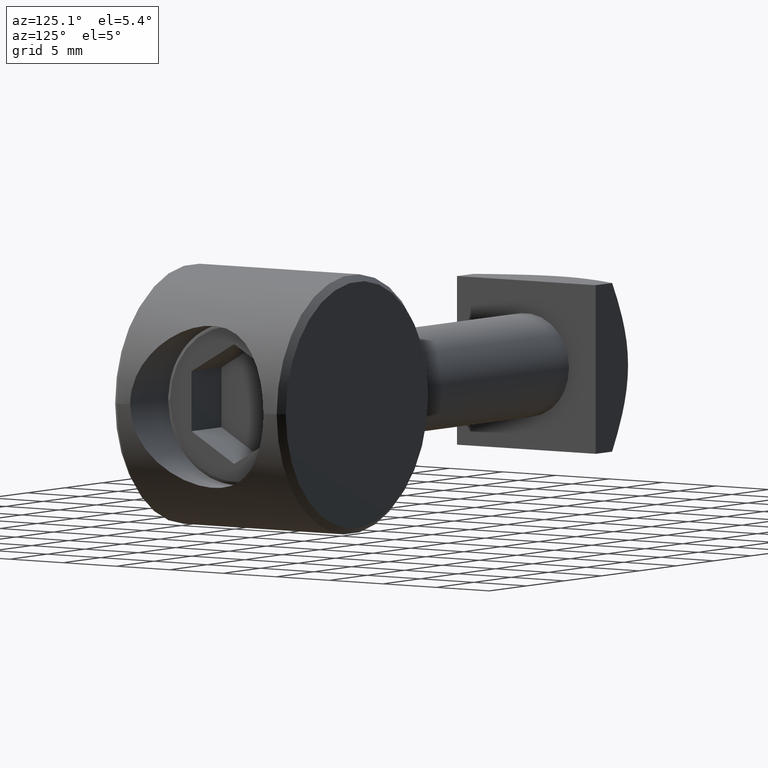
[diagram: clean part render]
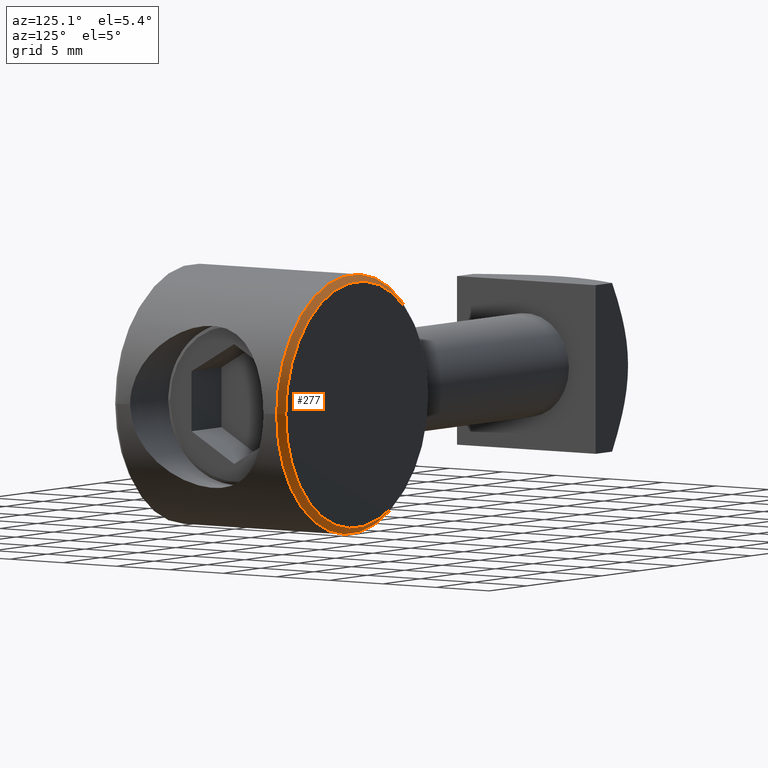
[diagram: same view with one face highlighted and labeled with its STEP entity id]
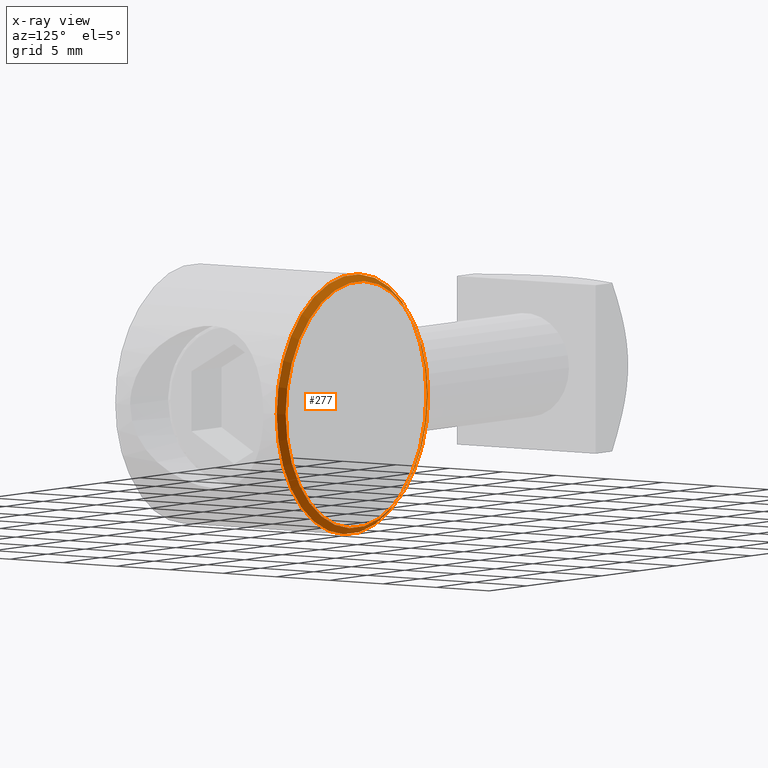
[diagram: x-ray of the same camera — body ghosted, the highlighted face saturated]
A machine part, auxiliary view. The second image highlights one B-rep face of the part: STEP entity #277.
The next image is the same camera in x-ray: the body ghosted, the highlighted face saturated — about 0% of this face is hidden behind the body in this view.
In plain terms, the highlighted face is a freeform B-spline surface patch.
Its self-contained STEP definition (entity closure, byte-faithful):
#121=CARTESIAN_POINT('',(9.999999999959528,-0.499999999998181,0.0));
#122=VERTEX_POINT('',#121);
#129=CARTESIAN_POINT('',(-9.999999999959528,-0.499999999998181,0.0));
#130=VERTEX_POINT('',#129);
#131=CARTESIAN_POINT('',(0.0,-0.499999999998181,0.0));
#132=DIRECTION('',(0.0,-1.0,0.0));
#133=DIRECTION('',(1.0,0.0,0.0));
#134=AXIS2_PLACEMENT_3D('',#131,#132,#133);
#135=CIRCLE('',#134,9.999999999959528);
#136=EDGE_CURVE('',#122,#130,#135,.T.);
#138=CARTESIAN_POINT('',(0.0,-0.499999999998181,0.0));
#139=DIRECTION('',(0.0,-1.0,0.0));
#140=DIRECTION('',(1.0,0.0,0.0));
#141=AXIS2_PLACEMENT_3D('',#138,#139,#140);
#142=CIRCLE('',#141,9.999999999959528);
#143=EDGE_CURVE('',#130,#122,#142,.T.);
#222=CARTESIAN_POINT('',(9.999999999959528,-0.499999999998181,0.0));
#223=CARTESIAN_POINT('',(9.999999999959528,-0.499999999998181,9.999999999959528));
#224=CARTESIAN_POINT('',(0.0,-0.499999999998181,9.999999999959528));
#225=CARTESIAN_POINT('',(-9.999999999959528,-0.499999999998181,9.999999999959528));
#226=CARTESIAN_POINT('',(-9.999999999959528,-0.499999999998181,0.0));
#227=CARTESIAN_POINT('',(-9.999999999959528,-0.499999999998181,-9.999999999959528));
#228=CARTESIAN_POINT('',(0.0,-0.499999999998181,-9.999999999959528));
#229=CARTESIAN_POINT('',(9.999999999959528,-0.499999999998181,-9.999999999959528));
#230=CARTESIAN_POINT('',(9.999999999959528,-0.499999999998181,0.0));
#231=CARTESIAN_POINT('',(9.499999999961347,0.0,0.0));
#232=CARTESIAN_POINT('',(9.499999999961347,0.0,9.499999999961347));
#233=CARTESIAN_POINT('',(0.0,0.0,9.499999999961347));
#234=CARTESIAN_POINT('',(-9.499999999961347,0.0,9.499999999961347));
#235=CARTESIAN_POINT('',(-9.499999999961347,0.0,0.0));
#236=CARTESIAN_POINT('',(-9.499999999961347,0.0,-9.499999999961347));
#237=CARTESIAN_POINT('',(0.0,0.0,-9.499999999961347));
#238=CARTESIAN_POINT('',(9.499999999961347,0.0,-9.499999999961347));
#239=CARTESIAN_POINT('',(9.499999999961347,0.0,0.0));
#247=(BOUNDED_SURFACE()B_SPLINE_SURFACE(2,1,((#222,#231),(#223,#232),(#224,#233),(#225,#234),(#226,#235),(#227,#236),(#228,#237),(#229,#238),(#230,#239)),.UNSPECIFIED.,.T.,.F.,.U.)B_SPLINE_SURFACE_WITH_KNOTS((3,2,2,2,3),(2,2),(0.0,0.250000000000000,0.500000000000000,0.750000000000000,1.0),(0.0,0.707106781183975),.UNSPECIFIED.)GEOMETRIC_REPRESENTATION_ITEM()RATIONAL_B_SPLINE_SURFACE(((1.0,1.0),(0.707106781186548,0.707106781186548),(1.0,1.0),(0.707106781186548,0.707106781186548),(1.0,1.0),(0.707106781186548,0.707106781186548),(1.0,1.0),(0.707106781186548,0.707106781186548),(1.0,1.0)))REPRESENTATION_ITEM('')SURFACE());
#248=CARTESIAN_POINT('',(9.499999999961347,0.0,0.0));
#249=VERTEX_POINT('',#248);
#250=CARTESIAN_POINT('',(9.999999999959528,-0.499999999998181,0.0));
#251=DIRECTION('',(-0.707106781186548,0.707106781186548,0.0));
#252=VECTOR('',#251,0.707106781183975);
#253=LINE('',#250,#252);
#254=EDGE_CURVE('',#122,#249,#253,.T.);
#255=ORIENTED_EDGE('',*,*,#254,.T.);
#256=CARTESIAN_POINT('',(-9.499999999961347,0.0,0.0));
#257=VERTEX_POINT('',#256);
#258=CARTESIAN_POINT('',(0.0,0.0,0.0));
#259=DIRECTION('',(0.0,-1.0,0.0));
#260=DIRECTION('',(1.0,0.0,0.0));
#261=AXIS2_PLACEMENT_3D('',#258,#259,#260);
#262=CIRCLE('',#261,9.499999999961347);
#263=EDGE_CURVE('',#249,#257,#262,.T.);
#264=ORIENTED_EDGE('',*,*,#263,.T.);
#265=CARTESIAN_POINT('',(0.0,0.0,0.0));
#266=DIRECTION('',(0.0,-1.0,0.0));
#267=DIRECTION('',(1.0,0.0,0.0));
#268=AXIS2_PLACEMENT_3D('',#265,#266,#267);
#269=CIRCLE('',#268,9.499999999961347);
#270=EDGE_CURVE('',#257,#249,#269,.T.);
#271=ORIENTED_EDGE('',*,*,#270,.T.);
#272=ORIENTED_EDGE('',*,*,#254,.F.);
#273=ORIENTED_EDGE('',*,*,#143,.F.);
#274=ORIENTED_EDGE('',*,*,#136,.F.);
#275=EDGE_LOOP('',(#255,#264,#271,#272,#273,#274));
#276=FACE_OUTER_BOUND('',#275,.T.);
#277=ADVANCED_FACE('',(#276),#247,.F.);